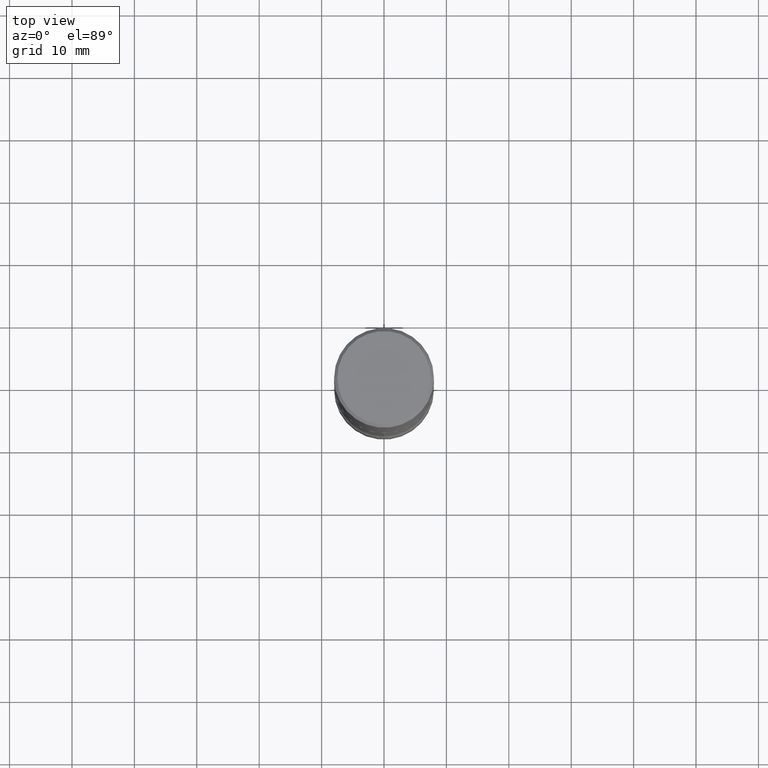
[diagram: clean part render]
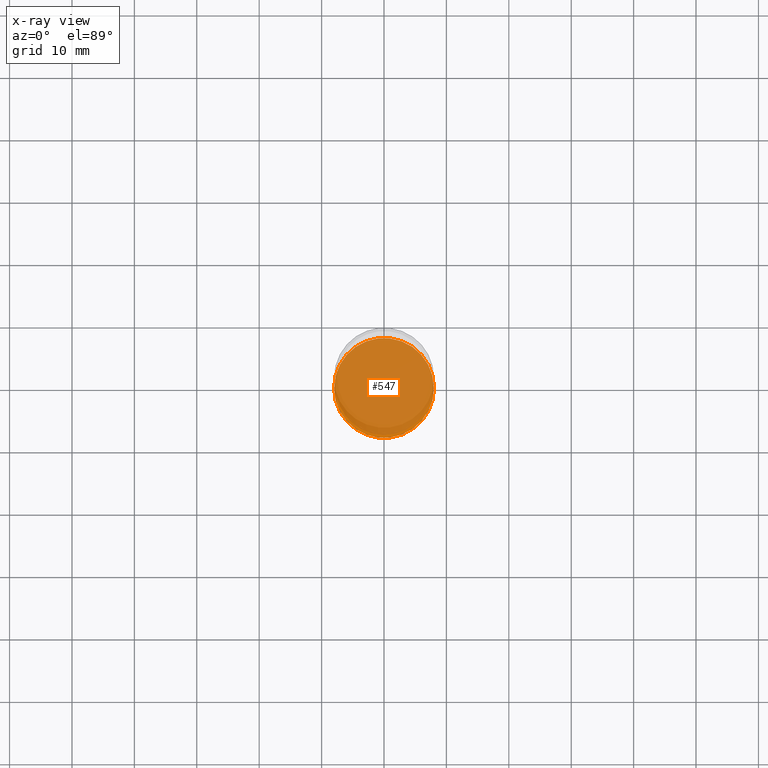
[diagram: x-ray — body ghosted, one internal face saturated and labeled with its STEP entity id]
A machine part, top view, then the same camera in x-ray: the body is ghosted and one INTERNAL B-rep face — a face not visible from any outside direction — is saturated and labeled: STEP entity #547.
In plain terms, the highlighted planar face has unit normal (0, -0, -1).
Its self-contained STEP definition (entity closure, byte-faithful):
#11 = CARTESIAN_POINT ( 'NONE',  ( 0.3149500000000002298, -1.525812259887842581E-14, -3.740200000000000191 ) ) ;
#14 = AXIS2_PLACEMENT_3D ( 'NONE', #411, #210, #17 ) ;
#17 = DIRECTION ( 'NONE',  ( 1.000000000000000000, -6.982962677686264344E-15, 0.000000000000000000 ) ) ;
#36 = CARTESIAN_POINT ( 'NONE',  ( 9.146542428893648262E-29, -1.305883850354113437E-14, -3.740200000000000191 ) ) ;
#53 = AXIS2_PLACEMENT_3D ( 'NONE', #205, #329, #371 ) ;
#56 = ORIENTED_EDGE ( 'NONE', *, *, #521, .T. ) ;
#72 = FACE_OUTER_BOUND ( 'NONE', #432, .T. ) ;
#133 = VERTEX_POINT ( 'NONE', #11 ) ;
#147 = AXIS2_PLACEMENT_3D ( 'NONE', #36, #308, #386 ) ;
#191 = ORIENTED_EDGE ( 'NONE', *, *, #227, .T. ) ;
#205 = CARTESIAN_POINT ( 'NONE',  ( 9.146542428893648262E-29, -1.305883850354113437E-14, -3.740200000000000191 ) ) ;
#210 = DIRECTION ( 'NONE',  ( -2.445468806185136597E-29, 3.491481338843145583E-15, 1.000000000000000000 ) ) ;
#227 = EDGE_CURVE ( 'NONE', #278, #133, #394, .T. ) ;
#229 = CARTESIAN_POINT ( 'NONE',  ( -0.3149500000000002298, -1.185184402255813608E-14, -3.740200000000000191 ) ) ;
#278 = VERTEX_POINT ( 'NONE', #229 ) ;
#308 = DIRECTION ( 'NONE',  ( 2.438088387897960049E-29, -3.491481338843145188E-15, -1.000000000000000000 ) ) ;
#311 = CIRCLE ( 'NONE', #53, 0.3149500000000002298 ) ;
#329 = DIRECTION ( 'NONE',  ( -2.445468806185136597E-29, 3.491481338843145583E-15, 1.000000000000000000 ) ) ;
#371 = DIRECTION ( 'NONE',  ( 1.000000000000000000, -6.982962677686264344E-15, 0.000000000000000000 ) ) ;
#374 = PLANE ( 'NONE',  #147 ) ;
#386 = DIRECTION ( 'NONE',  ( -1.000000000000000000, 6.982962677686265922E-15, -4.876176775795935793E-29 ) ) ;
#394 = CIRCLE ( 'NONE', #14, 0.3149500000000002298 ) ;
#411 = CARTESIAN_POINT ( 'NONE',  ( 9.146542428893648262E-29, -1.305883850354113437E-14, -3.740200000000000191 ) ) ;
#432 = EDGE_LOOP ( 'NONE', ( #56, #191 ) ) ;
#521 = EDGE_CURVE ( 'NONE', #133, #278, #311, .T. ) ;
#547 = ADVANCED_FACE ( 'NONE', ( #72 ), #374, .F. ) ;